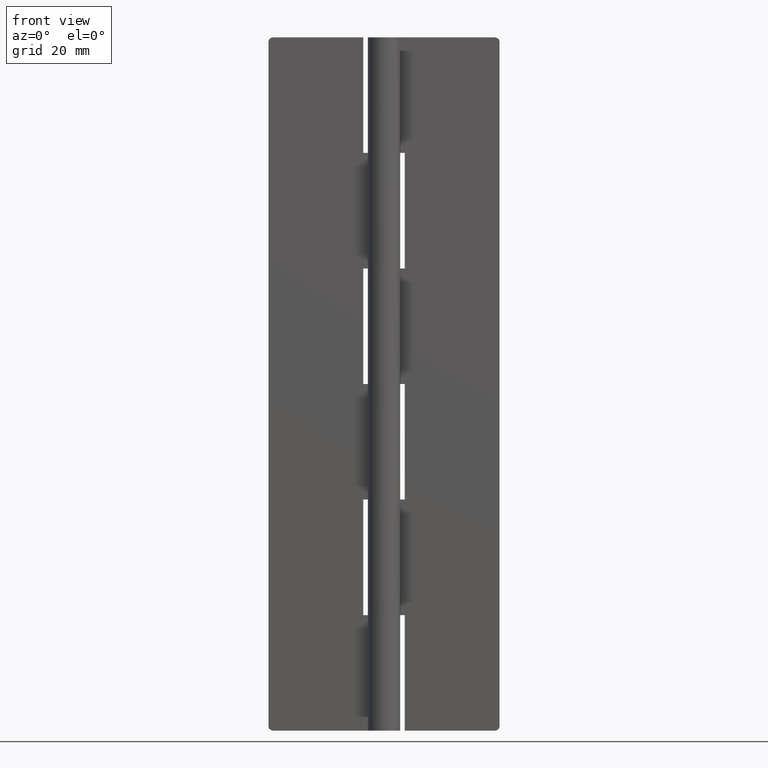
[diagram: clean part render]
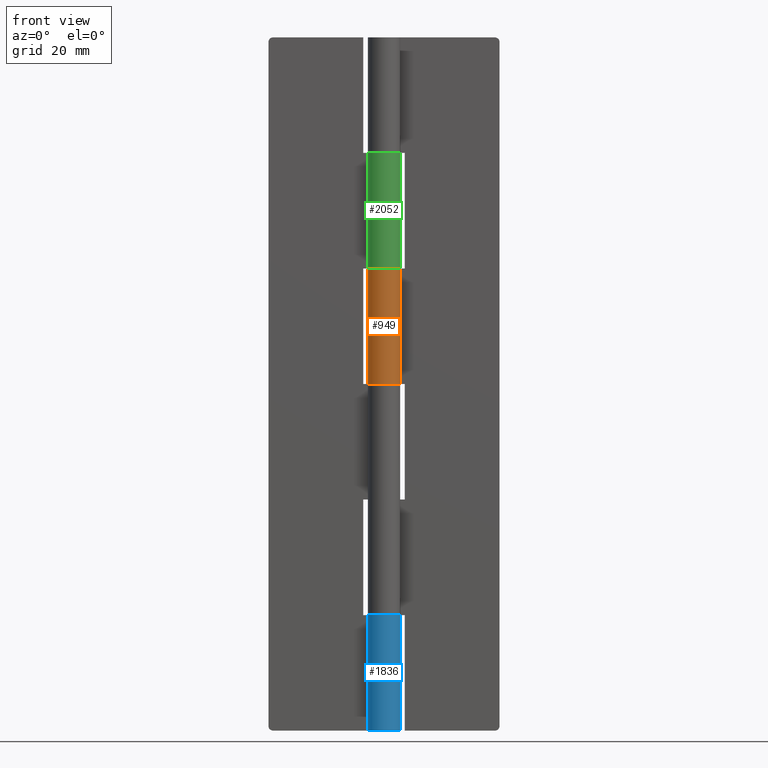
[diagram: same view with three faces highlighted in distinct colors, each labeled with its STEP entity id]
A machine part, front view with three faces highlighted in distinct colors.
Their STEP definitions:

[orange] entity #949 — the highlighted face is a freeform B-spline surface patch.
#277=CARTESIAN_POINT('',(0.0,3.499999999999950,100.0));
#278=VERTEX_POINT('',#277);
#279=CARTESIAN_POINT('',(2.906458325866730,1.950000000000000,100.0));
#280=VERTEX_POINT('',#279);
#281=CARTESIAN_POINT('',(0.0,3.500000000000000,100.0));
#282=CARTESIAN_POINT('',(-2.732759340469792,3.500000000000000,100.0));
#283=CARTESIAN_POINT('',(-3.395511382448716,0.848824158269080,100.0));
#284=CARTESIAN_POINT('',(-4.058263424427640,-1.802351683461841,100.0));
#285=CARTESIAN_POINT('',(-1.646966909200063,-3.088284313336451,100.0));
#286=CARTESIAN_POINT('',(0.764329606027516,-4.374216943211060,100.0));
#287=CARTESIAN_POINT('',(2.596662639363705,-2.346772919848174,100.0));
#288=CARTESIAN_POINT('',(4.428995672699892,-0.319328896485286,100.0));
#289=CARTESIAN_POINT('',(2.906458325866727,1.949999999999996,100.0));
#297=(BOUNDED_CURVE()B_SPLINE_CURVE(2,(#281,#282,#283,#284,#285,#286,#287,#288,#289),.UNSPECIFIED.,.F.,.U.)B_SPLINE_CURVE_WITH_KNOTS((3,2,2,2,3),(0.0,0.250000000000000,0.500000000000000,0.750000000000000,1.0),.UNSPECIFIED.)CURVE()GEOMETRIC_REPRESENTATION_ITEM()RATIONAL_B_SPLINE_CURVE((1.0,0.788200858942973,1.0,0.788200858942973,1.0,0.788200858942973,1.0,0.788200858942973,1.0))REPRESENTATION_ITEM(''));
#298=EDGE_CURVE('',#278,#280,#297,.T.);
#347=CARTESIAN_POINT('',(2.906458325866730,1.950000000000000,75.0));
#348=VERTEX_POINT('',#347);
#349=CARTESIAN_POINT('',(0.0,3.499999999999950,75.0));
#350=VERTEX_POINT('',#349);
#351=CARTESIAN_POINT('',(2.906458325866726,1.949999999999997,75.0));
#352=CARTESIAN_POINT('',(4.428995672699893,-0.319328896485285,75.0));
#353=CARTESIAN_POINT('',(2.596662639363705,-2.346772919848172,75.0));
#354=CARTESIAN_POINT('',(0.764329606027516,-4.374216943211059,75.0));
#355=CARTESIAN_POINT('',(-1.646966909200061,-3.088284313336452,75.0));
#356=CARTESIAN_POINT('',(-4.058263424427639,-1.802351683461843,75.0));
#357=CARTESIAN_POINT('',(-3.395511382448716,0.848824158269078,75.0));
#358=CARTESIAN_POINT('',(-2.732759340469793,3.500000000000001,75.0));
#359=CARTESIAN_POINT('',(0.0,3.500000000000000,75.0));
#367=(BOUNDED_CURVE()B_SPLINE_CURVE(2,(#351,#352,#353,#354,#355,#356,#357,#358,#359),.UNSPECIFIED.,.F.,.U.)B_SPLINE_CURVE_WITH_KNOTS((3,2,2,2,3),(0.0,0.250000000000000,0.500000000000000,0.750000000000000,1.0),.UNSPECIFIED.)CURVE()GEOMETRIC_REPRESENTATION_ITEM()RATIONAL_B_SPLINE_CURVE((1.0,0.788200858942973,1.0,0.788200858942973,1.0,0.788200858942973,1.0,0.788200858942973,1.0))REPRESENTATION_ITEM(''));
#368=EDGE_CURVE('',#348,#350,#367,.T.);
#866=CARTESIAN_POINT('',(0.0,3.499999999999950,100.0));
#867=CARTESIAN_POINT('',(0.0,3.499999999999950,75.0));
#868=QUASI_UNIFORM_CURVE('',1,(#866,#867),.UNSPECIFIED.,.F.,.U.);
#869=EDGE_CURVE('',#278,#350,#868,.T.);
#917=CARTESIAN_POINT('',(0.100263679686656,3.498563590180359,100.625000000000000));
#918=CARTESIAN_POINT('',(0.100263679686656,3.498563590180359,74.359374999999986));
#919=CARTESIAN_POINT('',(-4.324391348104693,3.625367686488798,100.625000000000030));
#920=CARTESIAN_POINT('',(-4.324391348104693,3.625367686488798,74.359375000000000));
#921=CARTESIAN_POINT('',(-3.427381751617111,-0.709263229472682,100.625000000000000));
#922=CARTESIAN_POINT('',(-3.427381751617111,-0.709263229472682,74.359374999999986));
#923=CARTESIAN_POINT('',(-2.530372155129529,-5.043894145434160,100.625000000000030));
#924=CARTESIAN_POINT('',(-2.530372155129529,-5.043894145434160,74.359375000000000));
#925=CARTESIAN_POINT('',(1.480553574345203,-3.171428875679483,100.625000000000000));
#926=CARTESIAN_POINT('',(1.480553574345203,-3.171428875679483,74.359374999999986));
#927=CARTESIAN_POINT('',(5.491479303819935,-1.298963605924806,100.625000000000030));
#928=CARTESIAN_POINT('',(5.491479303819935,-1.298963605924806,74.359375000000000));
#929=CARTESIAN_POINT('',(2.744503448160208,2.172026892797766,100.625000000000000));
#930=CARTESIAN_POINT('',(2.744503448160208,2.172026892797766,74.359374999999986));
#938=(BOUNDED_SURFACE()B_SPLINE_SURFACE(1,2,((#917,#919,#921,#923,#925,#927,#929),(#918,#920,#922,#924,#926,#928,#930)),.UNSPECIFIED.,.F.,.F.,.U.)B_SPLINE_SURFACE_WITH_KNOTS((2,2),(3,2,2,3),(0.0,26.265625000000028),(0.0,6.777915536387799,13.555831072775600,20.333746609163398),.UNSPECIFIED.)GEOMETRIC_REPRESENTATION_ITEM()RATIONAL_B_SPLINE_SURFACE(((1.0,0.620235491268260,1.0,0.620235491268260,1.0,0.620235491268260,1.0),(1.0,0.620235491268260,1.0,0.620235491268260,1.0,0.620235491268260,1.0)))REPRESENTATION_ITEM('')SURFACE());
#939=ORIENTED_EDGE('',*,*,#298,.F.);
#940=ORIENTED_EDGE('',*,*,#869,.T.);
#941=ORIENTED_EDGE('',*,*,#368,.F.);
#942=CARTESIAN_POINT('',(2.906458325866730,1.950000000000000,100.0));
#943=CARTESIAN_POINT('',(2.906458325866730,1.950000000000000,75.0));
#944=QUASI_UNIFORM_CURVE('',1,(#942,#943),.UNSPECIFIED.,.F.,.U.);
#945=EDGE_CURVE('',#280,#348,#944,.T.);
#946=ORIENTED_EDGE('',*,*,#945,.F.);
#947=EDGE_LOOP('',(#939,#940,#941,#946));
#948=FACE_OUTER_BOUND('',#947,.T.);
#949=ADVANCED_FACE('',(#948),#938,.T.);

[blue] entity #1836 — the highlighted face is a freeform B-spline surface patch.
#1570=CARTESIAN_POINT('',(0.0,3.499999999999950,25.0));
#1571=VERTEX_POINT('',#1570);
#1612=CARTESIAN_POINT('',(-2.906458325866725,1.950000000000000,25.0));
#1613=VERTEX_POINT('',#1612);
#1619=CARTESIAN_POINT('',(0.0,3.500000000000000,25.0));
#1620=CARTESIAN_POINT('',(2.732759340469793,3.500000000000000,24.999999999999996));
#1621=CARTESIAN_POINT('',(3.395511382448716,0.848824158269077,25.0));
#1622=CARTESIAN_POINT('',(4.058263424427640,-1.802351683461844,24.999999999999996));
#1623=CARTESIAN_POINT('',(1.646966909200060,-3.088284313336452,25.0));
#1624=CARTESIAN_POINT('',(-0.764329606027519,-4.374216943211060,24.999999999999996));
#1625=CARTESIAN_POINT('',(-2.596662639363706,-2.346772919848172,25.0));
#1626=CARTESIAN_POINT('',(-4.428995672699895,-0.319328896485282,24.999999999999996));
#1627=CARTESIAN_POINT('',(-2.906458325866723,1.950000000000001,25.0));
#1635=(BOUNDED_CURVE()B_SPLINE_CURVE(2,(#1619,#1620,#1621,#1622,#1623,#1624,#1625,#1626,#1627),.UNSPECIFIED.,.F.,.U.)B_SPLINE_CURVE_WITH_KNOTS((3,2,2,2,3),(0.0,0.250000000000000,0.500000000000000,0.750000000000000,1.0),.UNSPECIFIED.)CURVE()GEOMETRIC_REPRESENTATION_ITEM()RATIONAL_B_SPLINE_CURVE((1.0,0.788200858942972,1.0,0.788200858942972,1.0,0.788200858942972,1.0,0.788200858942972,1.0))REPRESENTATION_ITEM(''));
#1636=EDGE_CURVE('',#1571,#1613,#1635,.T.);
#1674=CARTESIAN_POINT('',(0.0,3.500000000000000,0.0));
#1675=VERTEX_POINT('',#1674);
#1681=CARTESIAN_POINT('',(-2.906458325866725,1.950000000000000,0.0));
#1682=VERTEX_POINT('',#1681);
#1683=CARTESIAN_POINT('',(0.0,3.500000000000000,0.0));
#1684=CARTESIAN_POINT('',(2.732759340469793,3.500000000000000,0.0));
#1685=CARTESIAN_POINT('',(3.395511382448716,0.848824158269077,0.0));
#1686=CARTESIAN_POINT('',(4.058263424427640,-1.802351683461844,0.0));
#1687=CARTESIAN_POINT('',(1.646966909200060,-3.088284313336452,0.0));
#1688=CARTESIAN_POINT('',(-0.764329606027519,-4.374216943211060,0.0));
#1689=CARTESIAN_POINT('',(-2.596662639363706,-2.346772919848172,0.0));
#1690=CARTESIAN_POINT('',(-4.428995672699895,-0.319328896485282,0.0));
#1691=CARTESIAN_POINT('',(-2.906458325866723,1.950000000000001,0.0));
#1699=(BOUNDED_CURVE()B_SPLINE_CURVE(2,(#1683,#1684,#1685,#1686,#1687,#1688,#1689,#1690,#1691),.UNSPECIFIED.,.F.,.U.)B_SPLINE_CURVE_WITH_KNOTS((3,2,2,2,3),(0.0,0.250000000000000,0.500000000000000,0.750000000000000,1.0),.UNSPECIFIED.)CURVE()GEOMETRIC_REPRESENTATION_ITEM()RATIONAL_B_SPLINE_CURVE((1.0,0.788200858942972,1.0,0.788200858942972,1.0,0.788200858942972,1.0,0.788200858942972,1.0))REPRESENTATION_ITEM(''));
#1700=EDGE_CURVE('',#1675,#1682,#1699,.T.);
#1793=CARTESIAN_POINT('',(-2.906458325866725,1.950000000000000,25.0));
#1794=CARTESIAN_POINT('',(-2.906458325866725,1.950000000000000,0.0));
#1795=QUASI_UNIFORM_CURVE('',1,(#1793,#1794),.UNSPECIFIED.,.F.,.U.);
#1796=EDGE_CURVE('',#1613,#1682,#1795,.T.);
#1804=CARTESIAN_POINT('',(-2.849404314247117,2.032460344988288,25.625000000000000));
#1805=CARTESIAN_POINT('',(-2.849404314247117,2.032460344988288,-0.640625000000004));
#1806=CARTESIAN_POINT('',(-5.419869493007912,-1.571198928386221,25.625000000000011));
#1807=CARTESIAN_POINT('',(-5.419869493007912,-1.571198928386221,-0.640625000000004));
#1808=CARTESIAN_POINT('',(-1.320557256320388,-3.241315864395131,25.625000000000000));
#1809=CARTESIAN_POINT('',(-1.320557256320388,-3.241315864395131,-0.640625000000004));
#1810=CARTESIAN_POINT('',(2.778754980367134,-4.911432800404040,25.625000000000011));
#1811=CARTESIAN_POINT('',(2.778754980367134,-4.911432800404040,-0.640625000000004));
#1812=CARTESIAN_POINT('',(3.458487237310264,-0.537462584150751,25.625000000000000));
#1813=CARTESIAN_POINT('',(3.458487237310264,-0.537462584150751,-0.640625000000004));
#1814=CARTESIAN_POINT('',(4.138219494253393,3.836507632102540,25.625000000000011));
#1815=CARTESIAN_POINT('',(4.138219494253393,3.836507632102540,-0.640625000000004));
#1816=CARTESIAN_POINT('',(-0.274606835047458,3.489210668065946,25.625000000000000));
#1817=CARTESIAN_POINT('',(-0.274606835047458,3.489210668065946,-0.640625000000004));
#1825=(BOUNDED_SURFACE()B_SPLINE_SURFACE(1,2,((#1804,#1806,#1808,#1810,#1812,#1814,#1816),(#1805,#1807,#1809,#1811,#1813,#1815,#1817)),.UNSPECIFIED.,.F.,.F.,.U.)B_SPLINE_SURFACE_WITH_KNOTS((2,2),(3,2,2,3),(0.0,26.265625000000011),(0.0,6.777915536387797,13.555831072775600,20.333746609163391),.UNSPECIFIED.)GEOMETRIC_REPRESENTATION_ITEM()RATIONAL_B_SPLINE_SURFACE(((1.0,0.620235491268260,1.0,0.620235491268260,1.0,0.620235491268260,1.0),(1.0,0.620235491268260,1.0,0.620235491268260,1.0,0.620235491268260,1.0)))REPRESENTATION_ITEM('')SURFACE());
#1826=ORIENTED_EDGE('',*,*,#1636,.T.);
#1827=ORIENTED_EDGE('',*,*,#1796,.T.);
#1828=ORIENTED_EDGE('',*,*,#1700,.F.);
#1829=CARTESIAN_POINT('',(0.0,3.499999999999950,25.0));
#1830=CARTESIAN_POINT('',(0.0,3.500000000000000,0.0));
#1831=QUASI_UNIFORM_CURVE('',1,(#1829,#1830),.UNSPECIFIED.,.F.,.U.);
#1832=EDGE_CURVE('',#1571,#1675,#1831,.T.);
#1833=ORIENTED_EDGE('',*,*,#1832,.F.);
#1834=EDGE_LOOP('',(#1826,#1827,#1828,#1833));
#1835=FACE_OUTER_BOUND('',#1834,.T.);
#1836=ADVANCED_FACE('',(#1835),#1825,.T.);

[green] entity #2052 — the highlighted face is a freeform B-spline surface patch.
#1210=CARTESIAN_POINT('',(0.0,3.499999999999950,125.0));
#1211=VERTEX_POINT('',#1210);
#1252=CARTESIAN_POINT('',(-2.906458325866725,1.950000000000000,125.0));
#1253=VERTEX_POINT('',#1252);
#1259=CARTESIAN_POINT('',(0.0,3.500000000000000,125.0));
#1260=CARTESIAN_POINT('',(2.732759340469793,3.500000000000000,125.0));
#1261=CARTESIAN_POINT('',(3.395511382448716,0.848824158269077,125.0));
#1262=CARTESIAN_POINT('',(4.058263424427640,-1.802351683461844,125.0));
#1263=CARTESIAN_POINT('',(1.646966909200060,-3.088284313336452,125.0));
#1264=CARTESIAN_POINT('',(-0.764329606027519,-4.374216943211060,125.0));
#1265=CARTESIAN_POINT('',(-2.596662639363706,-2.346772919848172,125.0));
#1266=CARTESIAN_POINT('',(-4.428995672699895,-0.319328896485282,125.0));
#1267=CARTESIAN_POINT('',(-2.906458325866723,1.950000000000001,125.0));
#1275=(BOUNDED_CURVE()B_SPLINE_CURVE(2,(#1259,#1260,#1261,#1262,#1263,#1264,#1265,#1266,#1267),.UNSPECIFIED.,.F.,.U.)B_SPLINE_CURVE_WITH_KNOTS((3,2,2,2,3),(0.0,0.250000000000000,0.500000000000000,0.750000000000000,1.0),.UNSPECIFIED.)CURVE()GEOMETRIC_REPRESENTATION_ITEM()RATIONAL_B_SPLINE_CURVE((1.0,0.788200858942972,1.0,0.788200858942972,1.0,0.788200858942972,1.0,0.788200858942972,1.0))REPRESENTATION_ITEM(''));
#1276=EDGE_CURVE('',#1211,#1253,#1275,.T.);
#1314=CARTESIAN_POINT('',(-2.906458325866725,1.950000000000000,100.000007999999990));
#1315=VERTEX_POINT('',#1314);
#1316=CARTESIAN_POINT('',(0.0,3.499999999999950,100.000007999999990));
#1317=VERTEX_POINT('',#1316);
#1318=CARTESIAN_POINT('',(-2.906458325866724,1.950000000000000,100.000007999999990));
#1319=CARTESIAN_POINT('',(-4.428995672699894,-0.319328896485281,100.000008000000010));
#1320=CARTESIAN_POINT('',(-2.596662639363708,-2.346772919848170,100.000007999999990));
#1321=CARTESIAN_POINT('',(-0.764329606027520,-4.374216943211062,100.000008000000010));
#1322=CARTESIAN_POINT('',(1.646966909200061,-3.088284313336452,100.000007999999990));
#1323=CARTESIAN_POINT('',(4.058263424427635,-1.802351683461845,100.000008000000010));
#1324=CARTESIAN_POINT('',(3.395511382448717,0.848824158269075,100.000007999999990));
#1325=CARTESIAN_POINT('',(2.732759340469795,3.500000000000000,100.000008000000010));
#1326=CARTESIAN_POINT('',(0.0,3.500000000000000,100.000007999999990));
#1334=(BOUNDED_CURVE()B_SPLINE_CURVE(2,(#1318,#1319,#1320,#1321,#1322,#1323,#1324,#1325,#1326),.UNSPECIFIED.,.F.,.U.)B_SPLINE_CURVE_WITH_KNOTS((3,2,2,2,3),(0.0,0.250000000000000,0.500000000000000,0.750000000000000,1.0),.UNSPECIFIED.)CURVE()GEOMETRIC_REPRESENTATION_ITEM()RATIONAL_B_SPLINE_CURVE((1.0,0.788200858942973,1.0,0.788200858942973,1.0,0.788200858942973,1.0,0.788200858942973,1.0))REPRESENTATION_ITEM(''));
#1335=EDGE_CURVE('',#1315,#1317,#1334,.T.);
#2009=CARTESIAN_POINT('',(-2.906458325866725,1.950000000000000,125.0));
#2010=CARTESIAN_POINT('',(-2.906458325866725,1.950000000000000,100.000007999999990));
#2011=QUASI_UNIFORM_CURVE('',1,(#2009,#2010),.UNSPECIFIED.,.F.,.U.);
#2012=EDGE_CURVE('',#1253,#1315,#2011,.T.);
#2020=CARTESIAN_POINT('',(-2.849404314247117,2.032460344988288,125.624999800000000));
#2021=CARTESIAN_POINT('',(-2.849404314247117,2.032460344988288,99.359383205000000));
#2022=CARTESIAN_POINT('',(-5.419869493007912,-1.571198928386221,125.624999800000030));
#2023=CARTESIAN_POINT('',(-5.419869493007912,-1.571198928386221,99.359383205000000));
#2024=CARTESIAN_POINT('',(-1.320557256320388,-3.241315864395131,125.624999800000000));
#2025=CARTESIAN_POINT('',(-1.320557256320388,-3.241315864395131,99.359383205000000));
#2026=CARTESIAN_POINT('',(2.778754980367134,-4.911432800404040,125.624999800000030));
#2027=CARTESIAN_POINT('',(2.778754980367134,-4.911432800404040,99.359383205000000));
#2028=CARTESIAN_POINT('',(3.458487237310264,-0.537462584150751,125.624999800000000));
#2029=CARTESIAN_POINT('',(3.458487237310264,-0.537462584150751,99.359383205000000));
#2030=CARTESIAN_POINT('',(4.138219494253393,3.836507632102540,125.624999800000030));
#2031=CARTESIAN_POINT('',(4.138219494253393,3.836507632102540,99.359383205000000));
#2032=CARTESIAN_POINT('',(-0.274606835047458,3.489210668065946,125.624999800000000));
#2033=CARTESIAN_POINT('',(-0.274606835047458,3.489210668065946,99.359383205000000));
#2041=(BOUNDED_SURFACE()B_SPLINE_SURFACE(1,2,((#2020,#2022,#2024,#2026,#2028,#2030,#2032),(#2021,#2023,#2025,#2027,#2029,#2031,#2033)),.UNSPECIFIED.,.F.,.F.,.U.)B_SPLINE_SURFACE_WITH_KNOTS((2,2),(3,2,2,3),(0.0,26.265616595000019),(0.0,6.777915536387797,13.555831072775600,20.333746609163391),.UNSPECIFIED.)GEOMETRIC_REPRESENTATION_ITEM()RATIONAL_B_SPLINE_SURFACE(((1.0,0.620235491268260,1.0,0.620235491268260,1.0,0.620235491268260,1.0),(1.0,0.620235491268260,1.0,0.620235491268260,1.0,0.620235491268260,1.0)))REPRESENTATION_ITEM('')SURFACE());
#2042=ORIENTED_EDGE('',*,*,#1276,.T.);
#2043=ORIENTED_EDGE('',*,*,#2012,.T.);
#2044=ORIENTED_EDGE('',*,*,#1335,.T.);
#2045=CARTESIAN_POINT('',(0.0,3.499999999999950,125.0));
#2046=CARTESIAN_POINT('',(0.0,3.499999999999950,100.000007999999990));
#2047=QUASI_UNIFORM_CURVE('',1,(#2045,#2046),.UNSPECIFIED.,.F.,.U.);
#2048=EDGE_CURVE('',#1211,#1317,#2047,.T.);
#2049=ORIENTED_EDGE('',*,*,#2048,.F.);
#2050=EDGE_LOOP('',(#2042,#2043,#2044,#2049));
#2051=FACE_OUTER_BOUND('',#2050,.T.);
#2052=ADVANCED_FACE('',(#2051),#2041,.T.);